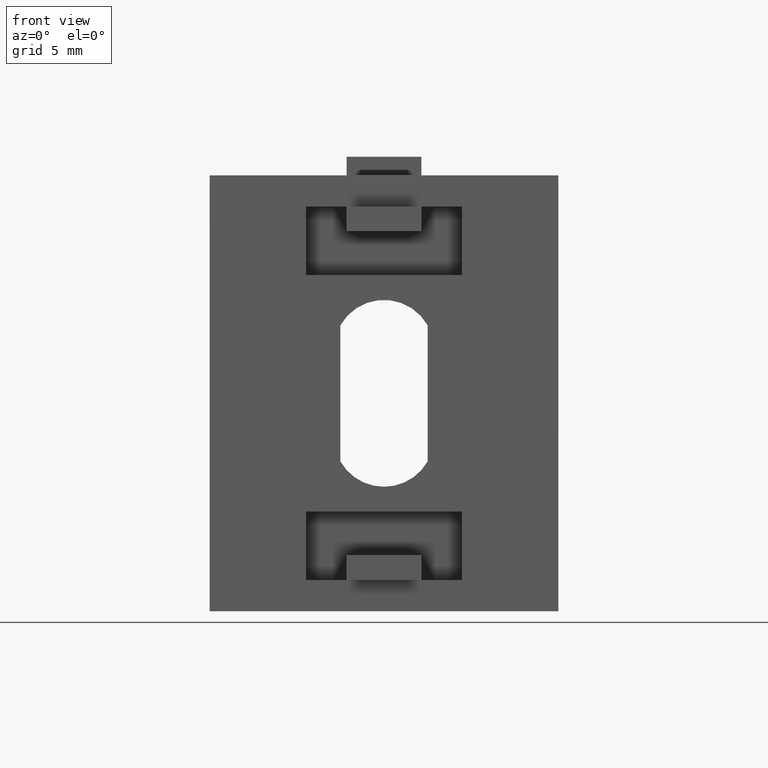
[diagram: clean part render]
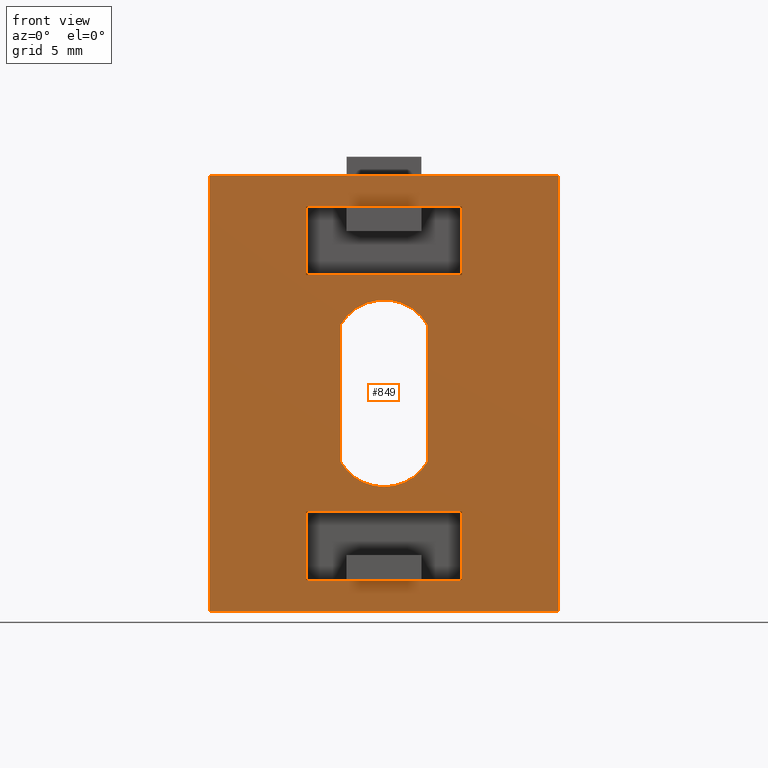
[diagram: same view with one face highlighted and labeled with its STEP entity id]
A machine part, front view. The second image highlights one B-rep face of the part: STEP entity #849.
In plain terms, the highlighted planar face has unit normal (0, 1, 0).
Its self-contained STEP definition (entity closure, byte-faithful):
#4 = EDGE_CURVE ( 'NONE', #47, #53, #1698, .T. ) ;
#9 = EDGE_CURVE ( 'NONE', #75, #49, #1708, .T. ) ;
#10 = EDGE_CURVE ( 'NONE', #49, #58, #1710, .T. ) ;
#12 = EDGE_CURVE ( 'NONE', #79, #82, #1715, .T. ) ;
#13 = EDGE_CURVE ( 'NONE', #82, #62, #1718, .T. ) ;
#14 = EDGE_CURVE ( 'NONE', #63, #90, #1720, .T. ) ;
#15 = EDGE_CURVE ( 'NONE', #62, #52, #1723, .T. ) ;
#16 = EDGE_CURVE ( 'NONE', #52, #2242, #1726, .T. ) ;
#17 = EDGE_CURVE ( 'NONE', #58, #80, #1729, .T. ) ;
#20 = EDGE_CURVE ( 'NONE', #2242, #2238, #1737, .T. ) ;
#21 = EDGE_CURVE ( 'NONE', #2238, #79, #1739, .T. ) ;
#23 = EDGE_CURVE ( 'NONE', #88, #76, #1745, .T. ) ;
#25 = EDGE_CURVE ( 'NONE', #53, #2204, #1749, .T. ) ;
#29 = EDGE_CURVE ( 'NONE', #80, #75, #1758, .T. ) ;
#30 = EDGE_CURVE ( 'NONE', #76, #47, #1761, .T. ) ;
#32 = EDGE_CURVE ( 'NONE', #2209, #88, #1769, .T. ) ;
#33 = EDGE_CURVE ( 'NONE', #2204, #2209, #1772, .T. ) ;
#34 = CARTESIAN_POINT ( 'NONE',  ( 10.50000000043359300, 0.0000000000000000000, -22.96887112645791600 ) ) ;
#35 = CARTESIAN_POINT ( 'NONE',  ( 17.50000000000000000, 0.0000000000000000000, -12.03112887415043600 ) ) ;
#36 = CARTESIAN_POINT ( 'NONE',  ( 20.25000000200000000, 0.0000000000000000000, -32.50000000375000300 ) ) ;
#42 = CARTESIAN_POINT ( 'NONE',  ( 7.749999997999999800, 0.0000000000000000000, -8.000000003750001200 ) ) ;
#44 = CARTESIAN_POINT ( 'NONE',  ( 0.0000000000000000000, 0.0000000000000000000, -35.00000000000000000 ) ) ;
#47 = VERTEX_POINT ( 'NONE', #1964 ) ;
#49 = VERTEX_POINT ( 'NONE', #1961 ) ;
#52 = VERTEX_POINT ( 'NONE', #1958 ) ;
#53 = VERTEX_POINT ( 'NONE', #1957 ) ;
#58 = VERTEX_POINT ( 'NONE', #1396 ) ;
#62 = VERTEX_POINT ( 'NONE', #1395 ) ;
#63 = VERTEX_POINT ( 'NONE', #1392 ) ;
#75 = VERTEX_POINT ( 'NONE', #1524 ) ;
#76 = VERTEX_POINT ( 'NONE', #1523 ) ;
#79 = VERTEX_POINT ( 'NONE', #1519 ) ;
#80 = VERTEX_POINT ( 'NONE', #44 ) ;
#82 = VERTEX_POINT ( 'NONE', #42 ) ;
#88 = VERTEX_POINT ( 'NONE', #36 ) ;
#89 = VERTEX_POINT ( 'NONE', #35 ) ;
#90 = VERTEX_POINT ( 'NONE', #34 ) ;
#264 = CARTESIAN_POINT ( 'NONE',  ( 14.00000000000000000, 0.0000000000000000000, -25.00000000000000000 ) ) ;
#268 = CARTESIAN_POINT ( 'NONE',  ( 17.50000000038682300, 0.0000000000000000000, -22.96887112502218600 ) ) ;
#283 = CARTESIAN_POINT ( 'NONE',  ( 11.00000000049999800, 7.500000512132565200E-010, -32.50000000187500100 ) ) ;
#288 = CARTESIAN_POINT ( 'NONE',  ( 16.99999999950000200, 7.500000512132565200E-010, -32.50000000187500100 ) ) ;
#317 = CARTESIAN_POINT ( 'NONE',  ( 11.00000000049999800, 7.500000512132565200E-010, -2.499999998125000300 ) ) ;
#321 = CARTESIAN_POINT ( 'NONE',  ( 16.99999999950000200, 7.500000512132565200E-010, -2.499999998125000300 ) ) ;
#498 = FACE_BOUND ( 'NONE', #1697, .T. ) ;
#500 = FACE_BOUND ( 'NONE', #1693, .T. ) ;
#501 = FACE_BOUND ( 'NONE', #1692, .T. ) ;
#502 = FACE_OUTER_BOUND ( 'NONE', #1695, .T. ) ;
#681 = ORIENTED_EDGE ( 'NONE', *, *, #1281, .F. ) ;
#682 = ORIENTED_EDGE ( 'NONE', *, *, #1269, .T. ) ;
#683 = ORIENTED_EDGE ( 'NONE', *, *, #1285, .F. ) ;
#684 = ORIENTED_EDGE ( 'NONE', *, *, #1258, .F. ) ;
#685 = ORIENTED_EDGE ( 'NONE', *, *, #14, .F. ) ;
#686 = ORIENTED_EDGE ( 'NONE', *, *, #12, .F. ) ;
#687 = ORIENTED_EDGE ( 'NONE', *, *, #21, .F. ) ;
#688 = ORIENTED_EDGE ( 'NONE', *, *, #20, .F. ) ;
#689 = ORIENTED_EDGE ( 'NONE', *, *, #16, .F. ) ;
#690 = ORIENTED_EDGE ( 'NONE', *, *, #15, .F. ) ;
#691 = ORIENTED_EDGE ( 'NONE', *, *, #13, .F. ) ;
#692 = ORIENTED_EDGE ( 'NONE', *, *, #4, .F. ) ;
#693 = ORIENTED_EDGE ( 'NONE', *, *, #30, .F. ) ;
#694 = ORIENTED_EDGE ( 'NONE', *, *, #23, .F. ) ;
#695 = ORIENTED_EDGE ( 'NONE', *, *, #32, .F. ) ;
#696 = ORIENTED_EDGE ( 'NONE', *, *, #33, .F. ) ;
#697 = ORIENTED_EDGE ( 'NONE', *, *, #25, .F. ) ;
#698 = ORIENTED_EDGE ( 'NONE', *, *, #17, .F. ) ;
#699 = ORIENTED_EDGE ( 'NONE', *, *, #10, .F. ) ;
#700 = ORIENTED_EDGE ( 'NONE', *, *, #9, .F. ) ;
#701 = ORIENTED_EDGE ( 'NONE', *, *, #29, .F. ) ;
#849 = ADVANCED_FACE ( 'NONE', ( #498, #500, #501, #502 ), #882, .F. ) ;
#882 = PLANE ( 'NONE',  #2190 ) ;
#883 = CARTESIAN_POINT ( 'NONE',  ( 0.0000000000000000000, 0.0000000000000000000, -35.00000000000000000 ) ) ;
#884 = DIRECTION ( 'NONE',  ( 0.0000000000000000000, 1.000000000000000000, 0.0000000000000000000 ) ) ;
#885 = DIRECTION ( 'NONE',  ( 0.0000000000000000000, 0.0000000000000000000, 1.000000000000000000 ) ) ;
#933 = CARTESIAN_POINT ( 'NONE',  ( 17.50000000000000000, 0.0000000000000000000, -17.50000000000000000 ) ) ;
#934 = DIRECTION ( 'NONE',  ( 0.0000000000000000000, 0.0000000000000000000, -1.000000000000000000 ) ) ;
#957 = CARTESIAN_POINT ( 'NONE',  ( 14.00000000000000000, 0.0000000000000000000, -14.03112887400000000 ) ) ;
#958 = DIRECTION ( 'NONE',  ( 0.0000000000000000000, -1.000000000000000000, 0.0000000000000000000 ) ) ;
#959 = DIRECTION ( 'NONE',  ( 0.0000000000000000000, 0.0000000000000000000, -1.000000000000000000 ) ) ;
#966 = CARTESIAN_POINT ( 'NONE',  ( 14.00000000000000000, 0.0000000000000000000, -20.96887112600000300 ) ) ;
#967 = DIRECTION ( 'NONE',  ( 0.0000000000000000000, -1.000000000000000000, 0.0000000000000000000 ) ) ;
#968 = DIRECTION ( 'NONE',  ( 0.0000000000000000000, 0.0000000000000000000, -1.000000000000000000 ) ) ;
#1258 = EDGE_CURVE ( 'NONE', #90, #2040, #1782, .T. ) ;
#1269 = EDGE_CURVE ( 'NONE', #89, #2044, #1801, .T. ) ;
#1281 = EDGE_CURVE ( 'NONE', #89, #63, #1832, .T. ) ;
#1285 = EDGE_CURVE ( 'NONE', #2040, #2044, #1840, .T. ) ;
#1392 = CARTESIAN_POINT ( 'NONE',  ( 10.50000000020297200, 0.0000000000000000000, -12.03112887394567200 ) ) ;
#1395 = CARTESIAN_POINT ( 'NONE',  ( 20.25000000200000000, 0.0000000000000000000, -8.000000003750001200 ) ) ;
#1396 = CARTESIAN_POINT ( 'NONE',  ( 28.00000000000000000, 0.0000000000000000000, -35.00000000000000000 ) ) ;
#1519 = CARTESIAN_POINT ( 'NONE',  ( 7.749999997999999800, 0.0000000000000000000, -2.499999996250000100 ) ) ;
#1523 = CARTESIAN_POINT ( 'NONE',  ( 20.25000000200000000, 0.0000000000000000000, -26.99999999625000400 ) ) ;
#1524 = CARTESIAN_POINT ( 'NONE',  ( 0.0000000000000000000, 0.0000000000000000000, 0.0000000000000000000 ) ) ;
#1692 = EDGE_LOOP ( 'NONE', ( #692, #693, #694, #695, #696, #697 ) ) ;
#1693 = EDGE_LOOP ( 'NONE', ( #686, #687, #688, #689, #690, #691 ) ) ;
#1695 = EDGE_LOOP ( 'NONE', ( #698, #699, #700, #701 ) ) ;
#1697 = EDGE_LOOP ( 'NONE', ( #681, #682, #683, #684, #685 ) ) ;
#1698 = LINE ( 'NONE', #2025, #1699 ) ;
#1699 = VECTOR ( 'NONE', #2024, 1000.000000000000000 ) ;
#1708 = LINE ( 'NONE', #2006, #1709 ) ;
#1709 = VECTOR ( 'NONE', #2005, 1000.000000000000000 ) ;
#1710 = LINE ( 'NONE', #2003, #1711 ) ;
#1711 = VECTOR ( 'NONE', #2000, 1000.000000000000000 ) ;
#1715 = LINE ( 'NONE', #1995, #1717 ) ;
#1717 = VECTOR ( 'NONE', #1994, 1000.000000000000000 ) ;
#1718 = LINE ( 'NONE', #1992, #1719 ) ;
#1719 = VECTOR ( 'NONE', #1991, 1000.000000000000000 ) ;
#1720 = LINE ( 'NONE', #1990, #1721 ) ;
#1721 = VECTOR ( 'NONE', #1989, 1000.000000000000000 ) ;
#1723 = LINE ( 'NONE', #2015, #1725 ) ;
#1725 = VECTOR ( 'NONE', #2014, 1000.000000000000000 ) ;
#1726 = LINE ( 'NONE', #2013, #1728 ) ;
#1728 = VECTOR ( 'NONE', #2012, 1000.000000000000000 ) ;
#1729 = LINE ( 'NONE', #2011, #1731 ) ;
#1731 = VECTOR ( 'NONE', #2010, 1000.000000000000000 ) ;
#1737 = LINE ( 'NONE', #2002, #1738 ) ;
#1738 = VECTOR ( 'NONE', #2001, 1000.000000000000000 ) ;
#1739 = LINE ( 'NONE', #1999, #1740 ) ;
#1740 = VECTOR ( 'NONE', #1997, 1000.000000000000000 ) ;
#1745 = LINE ( 'NONE', #1943, #1746 ) ;
#1746 = VECTOR ( 'NONE', #1947, 1000.000000000000000 ) ;
#1749 = LINE ( 'NONE', #1951, #1750 ) ;
#1750 = VECTOR ( 'NONE', #1950, 1000.000000000000000 ) ;
#1758 = LINE ( 'NONE', #1940, #1760 ) ;
#1760 = VECTOR ( 'NONE', #1939, 1000.000000000000000 ) ;
#1761 = LINE ( 'NONE', #1938, #1763 ) ;
#1763 = VECTOR ( 'NONE', #1963, 1000.000000000000000 ) ;
#1769 = LINE ( 'NONE', #1970, #1770 ) ;
#1770 = VECTOR ( 'NONE', #1968, 1000.000000000000000 ) ;
#1772 = LINE ( 'NONE', #1966, #1773 ) ;
#1773 = VECTOR ( 'NONE', #1965, 1000.000000000000000 ) ;
#1782 = CIRCLE ( 'NONE', #2182, 4.031128873999999300 ) ;
#1801 = LINE ( 'NONE', #933, #1805 ) ;
#1805 = VECTOR ( 'NONE', #934, 1000.000000000000000 ) ;
#1832 = CIRCLE ( 'NONE', #2199, 4.031128874000001100 ) ;
#1840 = CIRCLE ( 'NONE', #2188, 4.031128873999999300 ) ;
#1938 = CARTESIAN_POINT ( 'NONE',  ( 14.00000000000000000, 0.0000000000000000000, -26.99999998500000200 ) ) ;
#1939 = DIRECTION ( 'NONE',  ( 0.0000000000000000000, 0.0000000000000000000, 1.000000000000000000 ) ) ;
#1940 = CARTESIAN_POINT ( 'NONE',  ( 0.0000000000000000000, 0.0000000000000000000, -17.50000000000000000 ) ) ;
#1943 = CARTESIAN_POINT ( 'NONE',  ( 20.25000000800000100, 0.0000000000000000000, -17.50000000000000000 ) ) ;
#1947 = DIRECTION ( 'NONE',  ( 0.0000000000000000000, 0.0000000000000000000, 1.000000000000000000 ) ) ;
#1950 = DIRECTION ( 'NONE',  ( 1.000000000000000000, 0.0000000000000000000, 0.0000000000000000000 ) ) ;
#1951 = CARTESIAN_POINT ( 'NONE',  ( 14.00000000000000000, 0.0000000000000000000, -32.50000001500000500 ) ) ;
#1957 = CARTESIAN_POINT ( 'NONE',  ( 7.749999997999999800, 0.0000000000000000000, -32.50000000375000300 ) ) ;
#1958 = CARTESIAN_POINT ( 'NONE',  ( 20.25000000200000000, 0.0000000000000000000, -2.499999996250000100 ) ) ;
#1961 = CARTESIAN_POINT ( 'NONE',  ( 28.00000000000000000, 0.0000000000000000000, 0.0000000000000000000 ) ) ;
#1963 = DIRECTION ( 'NONE',  ( -1.000000000000000000, -0.0000000000000000000, -0.0000000000000000000 ) ) ;
#1964 = CARTESIAN_POINT ( 'NONE',  ( 7.749999997999999800, 0.0000000000000000000, -26.99999999625000400 ) ) ;
#1965 = DIRECTION ( 'NONE',  ( 1.000000000000000000, 0.0000000000000000000, 0.0000000000000000000 ) ) ;
#1966 = CARTESIAN_POINT ( 'NONE',  ( 14.00000000000000000, 0.0000000000000000000, -32.50000001500000500 ) ) ;
#1968 = DIRECTION ( 'NONE',  ( 1.000000000000000000, 0.0000000000000000000, 0.0000000000000000000 ) ) ;
#1970 = CARTESIAN_POINT ( 'NONE',  ( 14.00000000000000000, 0.0000000000000000000, -32.50000001500000500 ) ) ;
#1989 = DIRECTION ( 'NONE',  ( -0.0000000000000000000, -0.0000000000000000000, -1.000000000000000000 ) ) ;
#1990 = CARTESIAN_POINT ( 'NONE',  ( 10.50000000000000200, 0.0000000000000000000, -17.50000000000000000 ) ) ;
#1991 = DIRECTION ( 'NONE',  ( 1.000000000000000000, 0.0000000000000000000, 0.0000000000000000000 ) ) ;
#1992 = CARTESIAN_POINT ( 'NONE',  ( 14.00000000000000000, 0.0000000000000000000, -8.000000015000003000 ) ) ;
#1994 = DIRECTION ( 'NONE',  ( -0.0000000000000000000, -0.0000000000000000000, -1.000000000000000000 ) ) ;
#1995 = CARTESIAN_POINT ( 'NONE',  ( 7.749999992000001100, 0.0000000000000000000, -17.50000000000000000 ) ) ;
#1997 = DIRECTION ( 'NONE',  ( -1.000000000000000000, -0.0000000000000000000, -0.0000000000000000000 ) ) ;
#1999 = CARTESIAN_POINT ( 'NONE',  ( 14.00000000000000000, 0.0000000000000000000, -2.499999985000000100 ) ) ;
#2000 = DIRECTION ( 'NONE',  ( -0.0000000000000000000, -0.0000000000000000000, -1.000000000000000000 ) ) ;
#2001 = DIRECTION ( 'NONE',  ( -1.000000000000000000, -0.0000000000000000000, -0.0000000000000000000 ) ) ;
#2002 = CARTESIAN_POINT ( 'NONE',  ( 14.00000000000000000, 0.0000000000000000000, -2.499999985000000100 ) ) ;
#2003 = CARTESIAN_POINT ( 'NONE',  ( 28.00000000000000000, 0.0000000000000000000, -17.50000000000000000 ) ) ;
#2005 = DIRECTION ( 'NONE',  ( 1.000000000000000000, 0.0000000000000000000, 0.0000000000000000000 ) ) ;
#2006 = CARTESIAN_POINT ( 'NONE',  ( 14.00000000000000000, 0.0000000000000000000, 0.0000000000000000000 ) ) ;
#2010 = DIRECTION ( 'NONE',  ( -1.000000000000000000, -0.0000000000000000000, -0.0000000000000000000 ) ) ;
#2011 = CARTESIAN_POINT ( 'NONE',  ( 14.00000000000000000, 0.0000000000000000000, -35.00000000000000000 ) ) ;
#2012 = DIRECTION ( 'NONE',  ( -1.000000000000000000, -0.0000000000000000000, -0.0000000000000000000 ) ) ;
#2013 = CARTESIAN_POINT ( 'NONE',  ( 14.00000000000000000, 0.0000000000000000000, -2.499999985000000100 ) ) ;
#2014 = DIRECTION ( 'NONE',  ( 0.0000000000000000000, 0.0000000000000000000, 1.000000000000000000 ) ) ;
#2015 = CARTESIAN_POINT ( 'NONE',  ( 20.25000000800000100, 0.0000000000000000000, -17.50000000000000000 ) ) ;
#2024 = DIRECTION ( 'NONE',  ( -0.0000000000000000000, -0.0000000000000000000, -1.000000000000000000 ) ) ;
#2025 = CARTESIAN_POINT ( 'NONE',  ( 7.749999992000001100, 0.0000000000000000000, -17.50000000000000000 ) ) ;
#2040 = VERTEX_POINT ( 'NONE', #264 ) ;
#2044 = VERTEX_POINT ( 'NONE', #268 ) ;
#2113 = CARTESIAN_POINT ( 'NONE',  ( 14.00000000000000000, 0.0000000000000000000, -20.96887112600000300 ) ) ;
#2114 = DIRECTION ( 'NONE',  ( 0.0000000000000000000, -1.000000000000000000, 0.0000000000000000000 ) ) ;
#2115 = DIRECTION ( 'NONE',  ( 0.0000000000000000000, 0.0000000000000000000, -1.000000000000000000 ) ) ;
#2182 = AXIS2_PLACEMENT_3D ( 'NONE', #2113, #2114, #2115 ) ;
#2188 = AXIS2_PLACEMENT_3D ( 'NONE', #966, #967, #968 ) ;
#2190 = AXIS2_PLACEMENT_3D ( 'NONE', #883, #884, #885 ) ;
#2199 = AXIS2_PLACEMENT_3D ( 'NONE', #957, #958, #959 ) ;
#2204 = VERTEX_POINT ( 'NONE', #283 ) ;
#2209 = VERTEX_POINT ( 'NONE', #288 ) ;
#2238 = VERTEX_POINT ( 'NONE', #317 ) ;
#2242 = VERTEX_POINT ( 'NONE', #321 ) ;